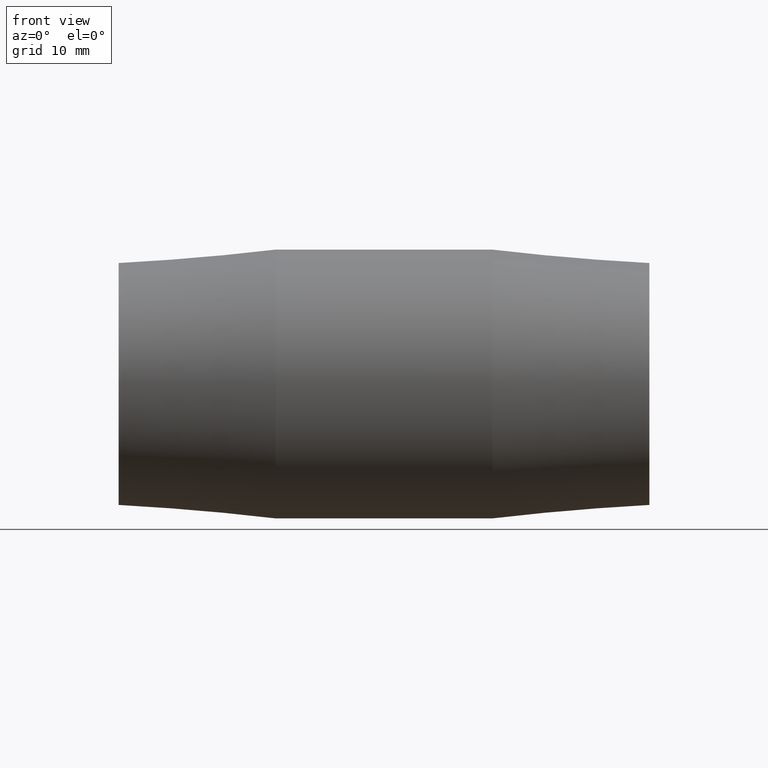
[diagram: clean part render]
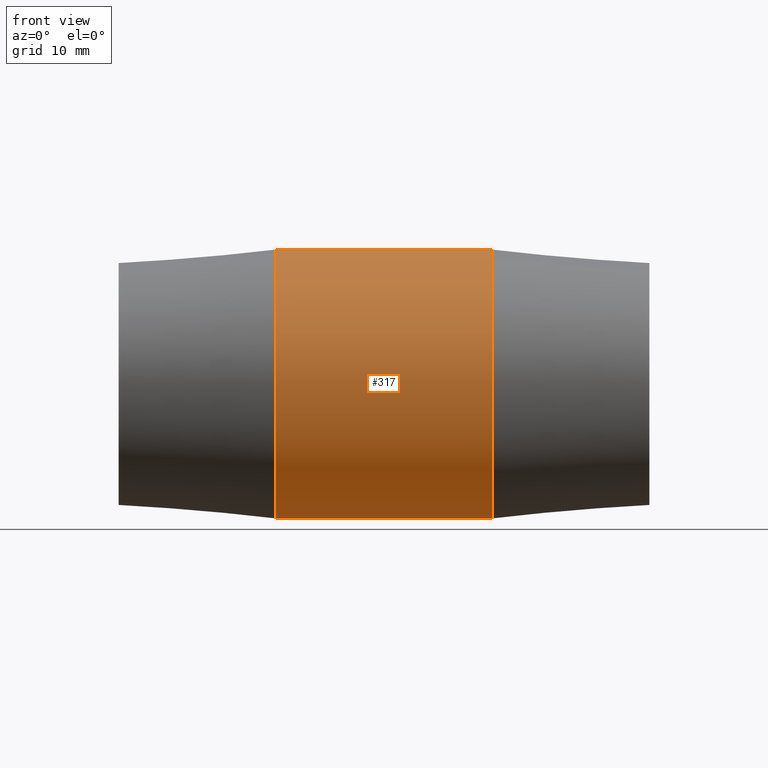
[diagram: same view with one face highlighted and labeled with its STEP entity id]
A machine part, front view. The second image highlights one B-rep face of the part: STEP entity #317.
In plain terms, the highlighted cylindrical surface (bore or boss wall) has radius 18 mm, axis along (1, 0, 0).
Its self-contained STEP definition (entity closure, byte-faithful):
#34=FACE_BOUND('',#115,.T.);
#57=CYLINDRICAL_SURFACE('',#358,18.);
#75=FACE_OUTER_BOUND('',#114,.T.);
#114=EDGE_LOOP('',(#257));
#115=EDGE_LOOP('',(#258));
#160=CIRCLE('',#359,18.);
#161=CIRCLE('',#360,18.);
#189=VERTEX_POINT('',#618);
#190=VERTEX_POINT('',#620);
#218=EDGE_CURVE('',#189,#189,#160,.T.);
#219=EDGE_CURVE('',#190,#190,#161,.T.);
#257=ORIENTED_EDGE('',*,*,#218,.T.);
#258=ORIENTED_EDGE('',*,*,#219,.F.);
#317=ADVANCED_FACE('',(#75,#34),#57,.T.);
#358=AXIS2_PLACEMENT_3D('',#617,#438,#439);
#359=AXIS2_PLACEMENT_3D('',#619,#440,#441);
#360=AXIS2_PLACEMENT_3D('',#621,#442,#443);
#438=DIRECTION('center_axis',(1.,1.83697019872103E-16,0.));
#439=DIRECTION('ref_axis',(-1.96131485542617E-16,1.,0.));
#440=DIRECTION('center_axis',(1.,1.83697019872103E-16,0.));
#441=DIRECTION('ref_axis',(0.,0.,-1.));
#442=DIRECTION('center_axis',(1.,1.83697019872103E-16,0.));
#443=DIRECTION('ref_axis',(0.,0.,-1.));
#617=CARTESIAN_POINT('Origin',(7.245,7.85212911443304E-15,0.));
#618=CARTESIAN_POINT('',(-14.5,18.,0.));
#619=CARTESIAN_POINT('Origin',(-14.5,3.85763741731416E-15,0.));
#620=CARTESIAN_POINT('',(14.5,18.,0.));
#621=CARTESIAN_POINT('Origin',(14.5,9.18485099360515E-15,0.));